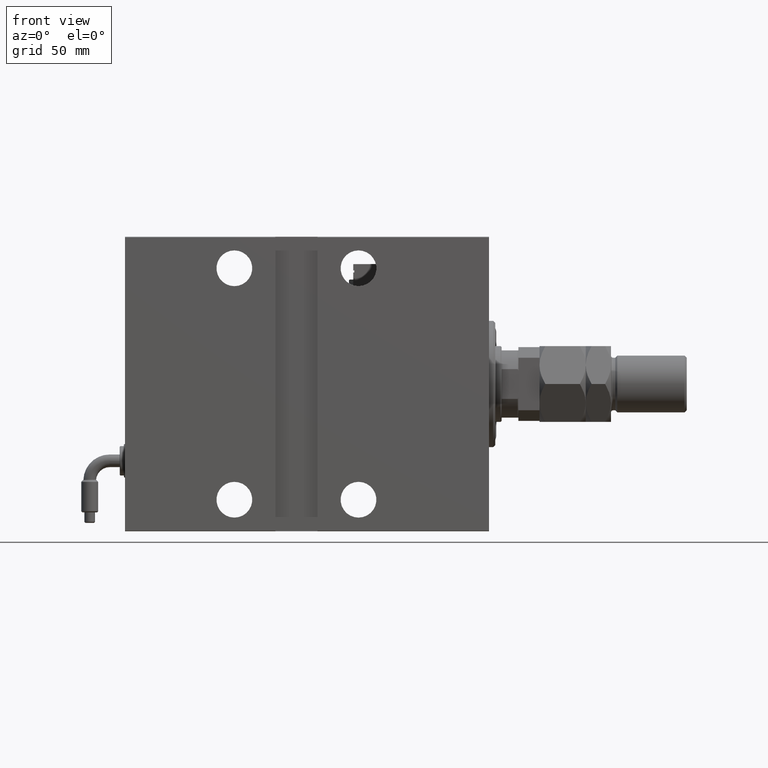
[diagram: clean part render]
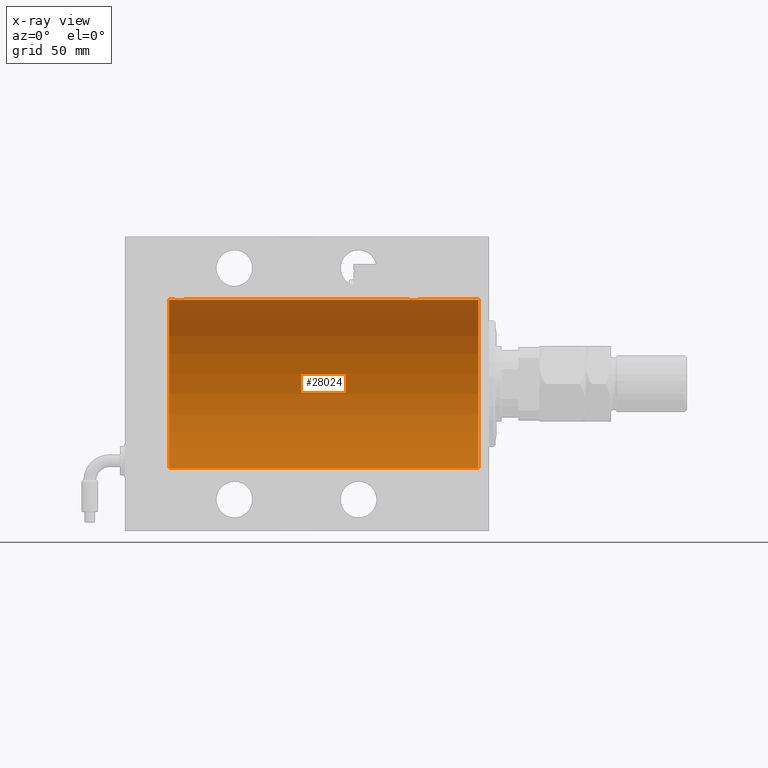
[diagram: x-ray — body ghosted, one internal face saturated and labeled with its STEP entity id]
A machine part, front view, then the same camera in x-ray: the body is ghosted and one INTERNAL B-rep face — a face not visible from any outside direction — is saturated and labeled: STEP entity #28024.
In plain terms, the highlighted cylindrical surface (partial cylindrical patch) has radius 40 mm, axis along (1, 0, -0).
Its self-contained STEP definition (entity closure, byte-faithful):
#135 = CARTESIAN_POINT ( 'NONE',  ( 38.38251680911464803, -1.833695109615718355, 39.95828327492363741 ) ) ;
#447 = CARTESIAN_POINT ( 'NONE',  ( 38.92026174991647025, -0.7903958539027386987, 39.99381900068935636 ) ) ;
#563 = ORIENTED_EDGE ( 'NONE', *, *, #45142, .F. ) ;
#1194 = CARTESIAN_POINT ( 'NONE',  ( 144.0000000000000284, -1.482387970046064334E-23, 40.00000000000000000 ) ) ;
#1383 = CARTESIAN_POINT ( 'NONE',  ( 32.99999999999997158, -0.1957844162750552452, 40.00000000000000000 ) ) ;
#1715 = EDGE_CURVE ( 'NONE', #59653, #58652, #5949, .T. ) ;
#2494 = CARTESIAN_POINT ( 'NONE',  ( 144.1533472698686182, -0.9668189122103342248, 39.98872185468384544 ) ) ;
#3117 = CARTESIAN_POINT ( 'NONE',  ( 144.3027865941912182, -1.327859336864145590, 39.97836169682017982 ) ) ;
#4358 = CYLINDRICAL_SURFACE ( 'NONE', #7780, 40.00000000000000000 ) ;
#4661 = DIRECTION ( 'NONE',  ( -1.000000000000000000, -0.000000000000000000, -0.000000000000000000 ) ) ;
#4853 = CARTESIAN_POINT ( 'NONE',  ( 35.60477516546423260, -2.980272303779553766, 39.88883864243167920 ) ) ;
#5150 = CARTESIAN_POINT ( 'NONE',  ( 39.00000000000000000, 1.037715139942869821E-15, 40.00000000000000000 ) ) ;
#5215 = DIRECTION ( 'NONE',  ( -1.000000000000000000, -0.000000000000000000, -0.000000000000000000 ) ) ;
#5462 = CARTESIAN_POINT ( 'NONE',  ( 35.79958713980802543, -2.999840380514749327, 39.88735335562824247 ) ) ;
#5774 = CARTESIAN_POINT ( 'NONE',  ( 33.73902383005257377, -1.981471132463168416, 39.95113231465138881 ) ) ;
#5949 = LINE ( 'NONE', #19477, #58253 ) ;
#6907 = CARTESIAN_POINT ( 'NONE',  ( 146.2213047658425467, -2.903766417398230271, 39.89448096967571189 ) ) ;
#7509 = CARTESIAN_POINT ( 'NONE',  ( 147.1956053107309685, -3.000157693440639761, 39.88732948994960736 ) ) ;
#7780 = AXIS2_PLACEMENT_3D ( 'NONE', #49261, #10605, #29768 ) ;
#7824 = CARTESIAN_POINT ( 'NONE',  ( 148.5008846840404146, -2.604941918888313612, 39.91523680494984916 ) ) ;
#8777 = DIRECTION ( 'NONE',  ( 0.000000000000000000, 0.000000000000000000, 1.000000000000000000 ) ) ;
#9377 = CARTESIAN_POINT ( 'NONE',  ( 152.0000000000000000, 0.000000000000000000, 40.00000000000000000 ) ) ;
#9568 = CARTESIAN_POINT ( 'NONE',  ( 34.66775731134134730, -2.695129988695744494, 39.90917164320281074 ) ) ;
#10006 = ORIENTED_EDGE ( 'NONE', *, *, #51771, .F. ) ;
#10605 = DIRECTION ( 'NONE',  ( -1.000000000000000000, -0.000000000000000000, -0.000000000000000000 ) ) ;
#10810 = CARTESIAN_POINT ( 'NONE',  ( 36.77455678826341057, -2.904869018727228358, 39.89440043036668015 ) ) ;
#11617 = CARTESIAN_POINT ( 'NONE',  ( 144.6149239908465063, -1.830402106103516280, 39.95843610133492518 ) ) ;
#11922 = CARTESIAN_POINT ( 'NONE',  ( 144.3956640008792078, -1.502129635934003948, 39.97212271185186694 ) ) ;
#12540 = CARTESIAN_POINT ( 'NONE',  ( 145.4955691708653092, -2.602909538701757342, 39.91537030566259858 ) ) ;
#12855 = CARTESIAN_POINT ( 'NONE',  ( 146.0306165810553409, -2.845855236045348402, 39.89870693240650468 ) ) ;
#14593 = CARTESIAN_POINT ( 'NONE',  ( 37.82690184632411246, -2.387636253591820079, 39.92882473497731866 ) ) ;
#14831 = LINE ( 'NONE', #24868, #50548 ) ;
#15241 = EDGE_CURVE ( 'NONE', #36740, #56944, #43565, .T. ) ;
#16629 = CARTESIAN_POINT ( 'NONE',  ( 145.6677573113414326, -2.695129988695745826, 39.90917164320281074 ) ) ;
#17534 = ORIENTED_EDGE ( 'NONE', *, *, #22197, .T. ) ;
#17685 = VERTEX_POINT ( 'NONE', #56254 ) ;
#17692 = EDGE_CURVE ( 'NONE', #58652, #17685, #35082, .T. ) ;
#17926 = CARTESIAN_POINT ( 'NONE',  ( 152.0000000000000000, 0.000000000000000000, 0.000000000000000000 ) ) ;
#19300 = CARTESIAN_POINT ( 'NONE',  ( 34.16955177177597847, -2.384933850258112553, 39.92898715513240404 ) ) ;
#19477 = CARTESIAN_POINT ( 'NONE',  ( 152.0000000000000000, 4.898587196589413026E-15, -40.00000000000000000 ) ) ;
#19604 = CARTESIAN_POINT ( 'NONE',  ( 39.00000000000000711, -0.3964922677423692865, 40.00000000000000711 ) ) ;
#20163 = DIRECTION ( 'NONE',  ( -1.000000000000000000, -0.000000000000000000, -0.000000000000000000 ) ) ;
#20780 = VERTEX_POINT ( 'NONE', #35209 ) ;
#21348 = CARTESIAN_POINT ( 'NONE',  ( 150.0000000000000284, -0.3964922677423700081, 40.00000000000001421 ) ) ;
#21367 = CIRCLE ( 'NONE', #25352, 40.00000000000000000 ) ;
#21654 = CARTESIAN_POINT ( 'NONE',  ( 146.6047751654642468, -2.980272303779546217, 39.88883864243170052 ) ) ;
#22197 = EDGE_CURVE ( 'NONE', #20780, #60496, #62119, .T. ) ;
#22276 = CARTESIAN_POINT ( 'NONE',  ( 147.9648932585351702, -2.847401743820454190, 39.89859630624609821 ) ) ;
#23603 = VECTOR ( 'NONE', #5215, 1000.000000000000000 ) ;
#24006 = CARTESIAN_POINT ( 'NONE',  ( 36.19560531073086906, -3.000157693440643758, 39.88732948994960026 ) ) ;
#24306 = CARTESIAN_POINT ( 'NONE',  ( 33.09574826348647036, -0.7773146824711036906, 39.99291453282343412 ) ) ;
#24868 = CARTESIAN_POINT ( 'NONE',  ( 152.0000000000000000, 0.000000000000000000, 40.00000000000000000 ) ) ;
#24933 = CARTESIAN_POINT ( 'NONE',  ( 36.96489325853514174, -2.847401743820462183, 39.89859630624607689 ) ) ;
#25109 = DIRECTION ( 'NONE',  ( -1.000000000000000000, -0.000000000000000000, -0.000000000000000000 ) ) ;
#25352 = AXIS2_PLACEMENT_3D ( 'NONE', #17926, #33303, #33009 ) ;
#25832 = EDGE_LOOP ( 'NONE', ( #563, #30107, #36786, #31635, #17534, #10006, #48365, #48661 ) ) ;
#26061 = CARTESIAN_POINT ( 'NONE',  ( 149.6953700770844193, -1.331594428131642527, 39.97823692017210107 ) ) ;
#26672 = CARTESIAN_POINT ( 'NONE',  ( 149.6018872812850020, -1.506322235190787895, 39.97196309111976831 ) ) ;
#27912 = EDGE_CURVE ( 'NONE', #20780, #17685, #28837, .T. ) ;
#28024 = ADVANCED_FACE ( 'NONE', ( #28233 ), #4358, .F. ) ;
#28233 = FACE_OUTER_BOUND ( 'NONE', #25832, .T. ) ;
#28734 = CARTESIAN_POINT ( 'NONE',  ( 35.03061658105534804, -2.845855236045349734, 39.89870693240651889 ) ) ;
#28837 = LINE ( 'NONE', #9377, #38883 ) ;
#28930 = VERTEX_POINT ( 'NONE', #1194 ) ;
#29033 = CARTESIAN_POINT ( 'NONE',  ( 34.49556917086533758, -2.602909538701760006, 39.91537030566259148 ) ) ;
#29336 = CARTESIAN_POINT ( 'NONE',  ( 33.30278659419118270, -1.327859336864150253, 39.97836169682017982 ) ) ;
#29768 = DIRECTION ( 'NONE',  ( 0.000000000000000000, 0.000000000000000000, 1.000000000000000000 ) ) ;
#29970 = CARTESIAN_POINT ( 'NONE',  ( 37.32853644746295885, -2.696981015661930936, 39.90904630908465833 ) ) ;
#30107 = ORIENTED_EDGE ( 'NONE', *, *, #1715, .T. ) ;
#30779 = CARTESIAN_POINT ( 'NONE',  ( 144.7390238300526164, -1.981471132463162643, 39.95113231465138171 ) ) ;
#31635 = ORIENTED_EDGE ( 'NONE', *, *, #27912, .F. ) ;
#31711 = CARTESIAN_POINT ( 'NONE',  ( 148.3285364474630228, -2.696981015661923387, 39.90904630908469386 ) ) ;
#33009 = DIRECTION ( 'NONE',  ( 0.000000000000000000, 0.000000000000000000, 1.000000000000000000 ) ) ;
#33303 = DIRECTION ( 'NONE',  ( -1.000000000000000000, 0.000000000000000000, 0.000000000000000000 ) ) ;
#33459 = CARTESIAN_POINT ( 'NONE',  ( 32.99999999999999289, -1.483452932268112700E-23, 40.00000000000000000 ) ) ;
#33761 = CARTESIAN_POINT ( 'NONE',  ( 38.60188728128492386, -1.506322235190783232, 39.97196309111974699 ) ) ;
#35082 = CIRCLE ( 'NONE', #51132, 40.00000000000000000 ) ;
#35209 = CARTESIAN_POINT ( 'NONE',  ( 32.99999999999999289, -1.483452932268112700E-23, 40.00000000000000000 ) ) ;
#35628 = CARTESIAN_POINT ( 'NONE',  ( 150.0000000000000284, 1.446721683758770418E-15, 40.00000000000000000 ) ) ;
#35716 = EDGE_CURVE ( 'NONE', #28930, #56944, #44252, .T. ) ;
#35810 = CARTESIAN_POINT ( 'NONE',  ( 147.3910969250933931, -2.980812880639897688, 39.88879797994690080 ) ) ;
#36120 = CARTESIAN_POINT ( 'NONE',  ( 149.3825168091146622, -1.833695109615722352, 39.95828327492363030 ) ) ;
#36740 = VERTEX_POINT ( 'NONE', #38003 ) ;
#36786 = ORIENTED_EDGE ( 'NONE', *, *, #17692, .T. ) ;
#38003 = CARTESIAN_POINT ( 'NONE',  ( 152.0000000000000000, 0.000000000000000000, 40.00000000000000000 ) ) ;
#38178 = CARTESIAN_POINT ( 'NONE',  ( 33.01898122889073051, -0.3904143323715976166, 39.99856256910221219 ) ) ;
#38883 = VECTOR ( 'NONE', #4661, 1000.000000000000000 ) ;
#39104 = CARTESIAN_POINT ( 'NONE',  ( 38.25829670320502629, -1.984537326394305801, 39.95097977400578060 ) ) ;
#40530 = CARTESIAN_POINT ( 'NONE',  ( 150.0000000000000284, 1.446721683758770418E-15, 40.00000000000000000 ) ) ;
#41149 = CARTESIAN_POINT ( 'NONE',  ( 144.0189812288907660, -0.3904143323715967839, 39.99856256910221219 ) ) ;
#41470 = CARTESIAN_POINT ( 'NONE',  ( 149.2582967032050760, -1.984537326394308909, 39.95097977400577349 ) ) ;
#41776 = CARTESIAN_POINT ( 'NONE',  ( 5.000000000000004441, 4.898587196589413026E-15, -40.00000000000000000 ) ) ;
#43198 = CARTESIAN_POINT ( 'NONE',  ( 37.98136279514229585, -2.261082456166707111, 39.93628274425758207 ) ) ;
#43565 = LINE ( 'NONE', #48267, #23603 ) ;
#43818 = CARTESIAN_POINT ( 'NONE',  ( 36.39109692509333627, -2.980812880639903906, 39.88879797994688658 ) ) ;
#44130 = CARTESIAN_POINT ( 'NONE',  ( 35.22130476584258219, -2.903766417398241373, 39.89448096967571189 ) ) ;
#44252 = B_SPLINE_CURVE_WITH_KNOTS ( 'NONE', 3,
 ( #50270, #45242, #41149, #54686, #2494, #3117, #11922, #11617, #30779, #60020, #49967, #12540, #16629, #12855, #6907, #21654, #60336, #7509, #35810, #60661, #22276, #31711, #7824, #54997, #50894, #41470, #36120, #26672, #26061, #59405, #21348, #40530 ),
 .UNSPECIFIED., .F., .F.,
 ( 4, 2, 2, 2, 2, 2, 2, 2, 2, 2, 2, 2, 2, 2, 2, 4 ),
 ( 0.009382660366305094896, 0.009968941372944130699, 0.01055522237958316650, 0.01114150338622220404, 0.01172778439286123985, 0.01231406539950027565, 0.01290034640613930972, 0.01348662741277834379, 0.01407290841941737959, 0.01465918942605641540, 0.01524547043269544946, 0.01583175143933448353, 0.01641803244597352107, 0.01700431345261255514, 0.01759059445925158921, 0.01876315647252969204 ),
 .UNSPECIFIED. ) ;
#45142 = EDGE_CURVE ( 'NONE', #59653, #36740, #21367, .T. ) ;
#45242 = CARTESIAN_POINT ( 'NONE',  ( 144.0000000000000284, -0.1957844162750525807, 40.00000000000000000 ) ) ;
#47423 = DIRECTION ( 'NONE',  ( -1.000000000000000000, 0.000000000000000000, 0.000000000000000000 ) ) ;
#48267 = CARTESIAN_POINT ( 'NONE',  ( 152.0000000000000000, 0.000000000000000000, 40.00000000000000000 ) ) ;
#48365 = ORIENTED_EDGE ( 'NONE', *, *, #35716, .T. ) ;
#48661 = ORIENTED_EDGE ( 'NONE', *, *, #15241, .F. ) ;
#49152 = CARTESIAN_POINT ( 'NONE',  ( 37.50088468404035069, -2.604941918888315833, 39.91523680494983495 ) ) ;
#49261 = CARTESIAN_POINT ( 'NONE',  ( 152.0000000000000000, 0.000000000000000000, 0.000000000000000000 ) ) ;
#49729 = CARTESIAN_POINT ( 'NONE',  ( 152.0000000000000000, 4.898587196589413026E-15, -40.00000000000000000 ) ) ;
#49967 = CARTESIAN_POINT ( 'NONE',  ( 145.1695517717760424, -2.384933850258109445, 39.92898715513240404 ) ) ;
#50270 = CARTESIAN_POINT ( 'NONE',  ( 144.0000000000000284, -1.482387970046064334E-23, 40.00000000000000000 ) ) ;
#50548 = VECTOR ( 'NONE', #20163, 1000.000000000000000 ) ;
#50894 = CARTESIAN_POINT ( 'NONE',  ( 148.9813627951423030, -2.261082456166709775, 39.93628274425758207 ) ) ;
#51132 = AXIS2_PLACEMENT_3D ( 'NONE', #56566, #47423, #8777 ) ;
#51771 = EDGE_CURVE ( 'NONE', #28930, #60496, #14831, .T. ) ;
#52645 = CARTESIAN_POINT ( 'NONE',  ( 33.61492399084646365, -1.830402106103518722, 39.95843610133494650 ) ) ;
#52945 = CARTESIAN_POINT ( 'NONE',  ( 38.69537007708435539, -1.331594428131644747, 39.97823692017209396 ) ) ;
#53256 = CARTESIAN_POINT ( 'NONE',  ( 34.01538552187719233, -2.258217541132905293, 39.93644519243653690 ) ) ;
#53887 = CARTESIAN_POINT ( 'NONE',  ( 33.15334726986859692, -0.9668189122103387767, 39.98872185468385254 ) ) ;
#54686 = CARTESIAN_POINT ( 'NONE',  ( 144.0957482634864846, -0.7773146824711021363, 39.99291453282343412 ) ) ;
#54997 = CARTESIAN_POINT ( 'NONE',  ( 148.8269018463241480, -2.387636253591820079, 39.92882473497732576 ) ) ;
#56254 = CARTESIAN_POINT ( 'NONE',  ( 5.000000000000004441, 0.000000000000000000, 40.00000000000000000 ) ) ;
#56566 = CARTESIAN_POINT ( 'NONE',  ( 5.000000000000004441, 0.000000000000000000, 0.000000000000000000 ) ) ;
#56944 = VERTEX_POINT ( 'NONE', #35628 ) ;
#57661 = CARTESIAN_POINT ( 'NONE',  ( 33.39566400087915810, -1.502129635934004614, 39.97212271185186694 ) ) ;
#58253 = VECTOR ( 'NONE', #25109, 1000.000000000000000 ) ;
#58652 = VERTEX_POINT ( 'NONE', #41776 ) ;
#58984 = CARTESIAN_POINT ( 'NONE',  ( 39.00000000000000000, 1.037715139942869821E-15, 40.00000000000000000 ) ) ;
#59405 = CARTESIAN_POINT ( 'NONE',  ( 149.9202617499165342, -0.7903958539027363672, 39.99381900068937767 ) ) ;
#59653 = VERTEX_POINT ( 'NONE', #49729 ) ;
#60020 = CARTESIAN_POINT ( 'NONE',  ( 145.0153855218772208, -2.258217541132898631, 39.93644519243653690 ) ) ;
#60336 = CARTESIAN_POINT ( 'NONE',  ( 146.7995871398080112, -2.999840380514742666, 39.88735335562825668 ) ) ;
#60496 = VERTEX_POINT ( 'NONE', #58984 ) ;
#60661 = CARTESIAN_POINT ( 'NONE',  ( 147.7745567882635100, -2.904869018727220364, 39.89440043036669437 ) ) ;
#62119 = B_SPLINE_CURVE_WITH_KNOTS ( 'NONE', 3,
 ( #33459, #1383, #38178, #24306, #53887, #29336, #57661, #52645, #5774, #53256, #19300, #29033, #9568, #28734, #44130, #4853, #5462, #24006, #43818, #10810, #24933, #29970, #49152, #14593, #43198, #39104, #135, #33761, #52945, #447, #19604, #5150 ),
 .UNSPECIFIED., .F., .F.,
 ( 4, 2, 2, 2, 2, 2, 2, 2, 2, 2, 2, 2, 2, 2, 2, 4 ),
 ( 0.009382660366305105304, 0.009968941372944142842, 0.01055522237958318038, 0.01114150338622221965, 0.01172778439286125719, 0.01231406539950029473, 0.01290034640613933400, 0.01348662741277837154, 0.01407290841941740908, 0.01465918942605644835, 0.01524547043269548416, 0.01583175143933452517, 0.01641803244597356271, 0.01700431345261260024, 0.01759059445925163778, 0.01876315647252971286 ),
 .UNSPECIFIED. ) ;